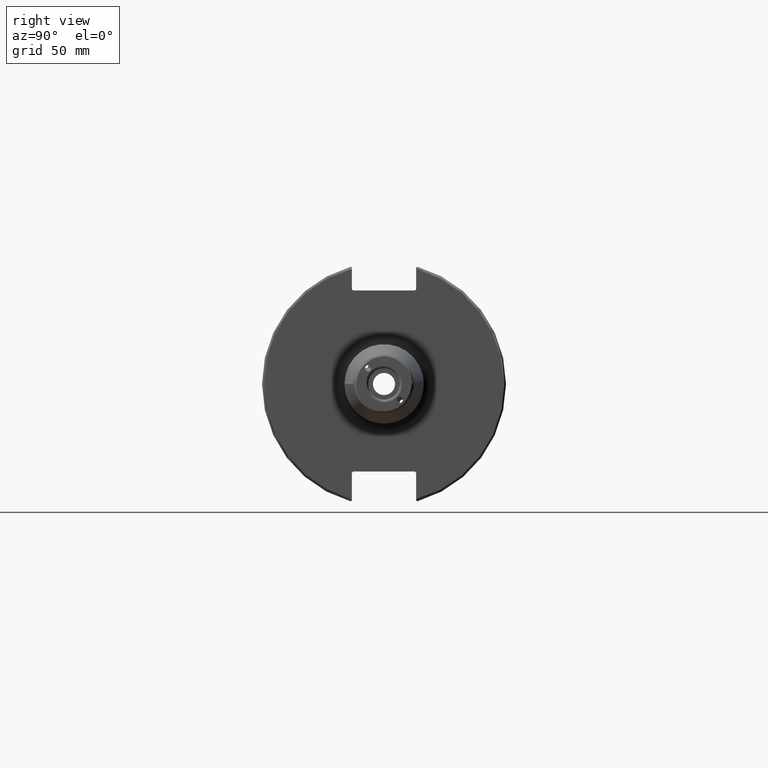
[diagram: clean part render]
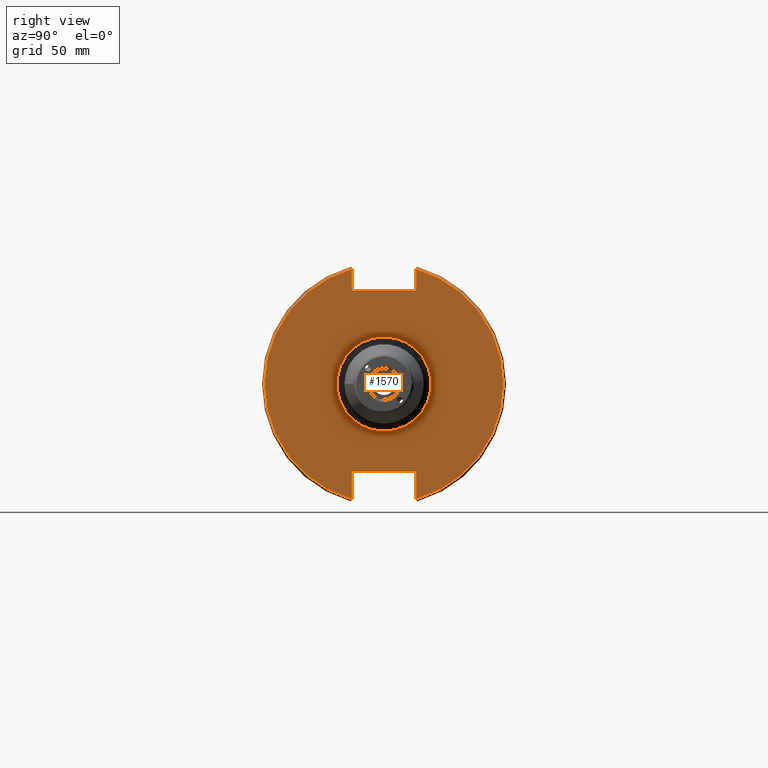
[diagram: same view with one face highlighted and labeled with its STEP entity id]
A machine part, right view. The second image highlights one B-rep face of the part: STEP entity #1570.
In plain terms, the highlighted planar face has unit normal (1, 0, 0).
Its self-contained STEP definition (entity closure, byte-faithful):
#76=FACE_BOUND('',#280,.T.);
#94=PLANE('',#1703);
#184=FACE_OUTER_BOUND('',#279,.T.);
#279=EDGE_LOOP('',(#1107,#1108,#1109,#1110,#1111,#1112,#1113,#1114,#1115,
#1116,#1117,#1118));
#280=EDGE_LOOP('',(#1119));
#384=LINE('',#2367,#482);
#385=LINE('',#2369,#483);
#386=LINE('',#2371,#484);
#387=LINE('',#2373,#485);
#388=LINE('',#2375,#486);
#389=LINE('',#2379,#487);
#390=LINE('',#2381,#488);
#391=LINE('',#2383,#489);
#392=LINE('',#2385,#490);
#393=LINE('',#2386,#491);
#482=VECTOR('',#1923,10.);
#483=VECTOR('',#1924,10.);
#484=VECTOR('',#1925,10.);
#485=VECTOR('',#1926,10.);
#486=VECTOR('',#1927,10.);
#487=VECTOR('',#1930,10.);
#488=VECTOR('',#1931,10.);
#489=VECTOR('',#1932,10.);
#490=VECTOR('',#1933,10.);
#491=VECTOR('',#1934,10.);
#587=CIRCLE('',#1700,19.);
#589=CIRCLE('',#1704,48.2125);
#590=CIRCLE('',#1705,48.2125);
#671=VERTEX_POINT('',#2356);
#672=VERTEX_POINT('',#2363);
#673=VERTEX_POINT('',#2364);
#674=VERTEX_POINT('',#2366);
#675=VERTEX_POINT('',#2368);
#676=VERTEX_POINT('',#2370);
#677=VERTEX_POINT('',#2372);
#678=VERTEX_POINT('',#2374);
#679=VERTEX_POINT('',#2376);
#680=VERTEX_POINT('',#2378);
#681=VERTEX_POINT('',#2380);
#682=VERTEX_POINT('',#2382);
#683=VERTEX_POINT('',#2384);
#839=EDGE_CURVE('',#671,#671,#587,.T.);
#842=EDGE_CURVE('',#672,#673,#589,.T.);
#843=EDGE_CURVE('',#672,#674,#384,.T.);
#844=EDGE_CURVE('',#675,#674,#385,.T.);
#845=EDGE_CURVE('',#675,#676,#386,.T.);
#846=EDGE_CURVE('',#677,#676,#387,.T.);
#847=EDGE_CURVE('',#677,#678,#388,.T.);
#848=EDGE_CURVE('',#679,#678,#590,.T.);
#849=EDGE_CURVE('',#679,#680,#389,.T.);
#850=EDGE_CURVE('',#681,#680,#390,.T.);
#851=EDGE_CURVE('',#681,#682,#391,.T.);
#852=EDGE_CURVE('',#683,#682,#392,.T.);
#853=EDGE_CURVE('',#683,#673,#393,.T.);
#1107=ORIENTED_EDGE('',*,*,#842,.F.);
#1108=ORIENTED_EDGE('',*,*,#843,.T.);
#1109=ORIENTED_EDGE('',*,*,#844,.F.);
#1110=ORIENTED_EDGE('',*,*,#845,.T.);
#1111=ORIENTED_EDGE('',*,*,#846,.F.);
#1112=ORIENTED_EDGE('',*,*,#847,.T.);
#1113=ORIENTED_EDGE('',*,*,#848,.F.);
#1114=ORIENTED_EDGE('',*,*,#849,.T.);
#1115=ORIENTED_EDGE('',*,*,#850,.F.);
#1116=ORIENTED_EDGE('',*,*,#851,.T.);
#1117=ORIENTED_EDGE('',*,*,#852,.F.);
#1118=ORIENTED_EDGE('',*,*,#853,.T.);
#1119=ORIENTED_EDGE('',*,*,#839,.F.);
#1570=ADVANCED_FACE('',(#184,#76),#94,.T.);
#1700=AXIS2_PLACEMENT_3D('',#2358,#1912,#1913);
#1703=AXIS2_PLACEMENT_3D('',#2362,#1919,#1920);
#1704=AXIS2_PLACEMENT_3D('',#2365,#1921,#1922);
#1705=AXIS2_PLACEMENT_3D('',#2377,#1928,#1929);
#1912=DIRECTION('center_axis',(1.,0.,0.));
#1913=DIRECTION('ref_axis',(0.,-1.,-1.22464679914735E-16));
#1919=DIRECTION('center_axis',(1.,0.,0.));
#1920=DIRECTION('ref_axis',(0.,0.,-1.));
#1921=DIRECTION('center_axis',(-1.,0.,0.));
#1922=DIRECTION('ref_axis',(0.,1.,-6.12323399573677E-17));
#1923=DIRECTION('',(0.,0.,-1.));
#1924=DIRECTION('',(0.,0.707106781186549,0.707106781186546));
#1925=DIRECTION('',(0.,-1.,0.));
#1926=DIRECTION('',(0.,0.707106781186549,-0.707106781186546));
#1927=DIRECTION('',(0.,0.,1.));
#1928=DIRECTION('center_axis',(-1.,0.,0.));
#1929=DIRECTION('ref_axis',(0.,-1.,1.60812264967664E-16));
#1930=DIRECTION('',(0.,0.,1.));
#1931=DIRECTION('',(0.,-0.707106781186549,-0.707106781186546));
#1932=DIRECTION('',(0.,1.,0.));
#1933=DIRECTION('',(0.,-0.707106781186548,0.707106781186548));
#1934=DIRECTION('',(0.,0.,-1.));
#2356=CARTESIAN_POINT('',(19.05,-2.32682891837997E-15,-19.));
#2358=CARTESIAN_POINT('Origin',(19.05,0.,0.));
#2362=CARTESIAN_POINT('Origin',(19.05,0.,0.));
#2363=CARTESIAN_POINT('',(19.05,12.95,46.4407434937254));
#2364=CARTESIAN_POINT('',(19.05,12.95,-46.4407434937254));
#2365=CARTESIAN_POINT('Origin',(19.05,0.,0.));
#2366=CARTESIAN_POINT('',(19.05,12.95,38.219));
#2367=CARTESIAN_POINT('',(19.05,12.95,18.8595));
#2368=CARTESIAN_POINT('',(19.05,12.45,37.719));
#2369=CARTESIAN_POINT('',(19.05,0.0327499999999836,25.30175));
#2370=CARTESIAN_POINT('',(19.05,-12.45,37.719));
#2371=CARTESIAN_POINT('',(19.05,0.,37.719));
#2372=CARTESIAN_POINT('',(19.05,-12.95,38.219));
#2373=CARTESIAN_POINT('',(19.05,-0.0327499999999817,25.30175));
#2374=CARTESIAN_POINT('',(19.05,-12.95,46.4407434937254));
#2375=CARTESIAN_POINT('',(19.05,-12.95,18.8595));
#2376=CARTESIAN_POINT('',(19.05,-12.95,-46.4407434937254));
#2377=CARTESIAN_POINT('Origin',(19.05,0.,0.));
#2378=CARTESIAN_POINT('',(19.05,-12.95,-35.806));
#2379=CARTESIAN_POINT('',(19.05,-12.95,-17.653));
#2380=CARTESIAN_POINT('',(19.05,-12.45,-35.306));
#2381=CARTESIAN_POINT('',(19.05,-0.635999999999989,-23.492));
#2382=CARTESIAN_POINT('',(19.05,12.45,-35.306));
#2383=CARTESIAN_POINT('',(19.05,-3.88578058618805E-15,-35.306));
#2384=CARTESIAN_POINT('',(19.05,12.95,-35.806));
#2385=CARTESIAN_POINT('',(19.05,0.635999999999995,-23.492));
#2386=CARTESIAN_POINT('',(19.05,12.95,-17.653));